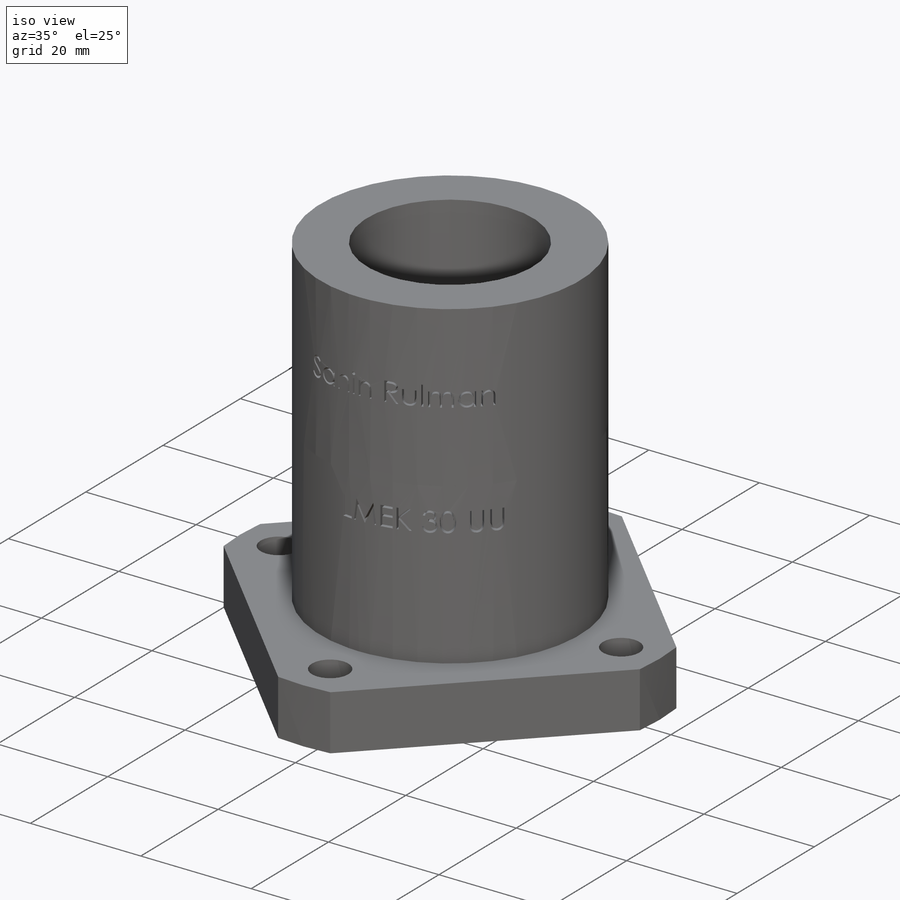
[diagram: iso view]
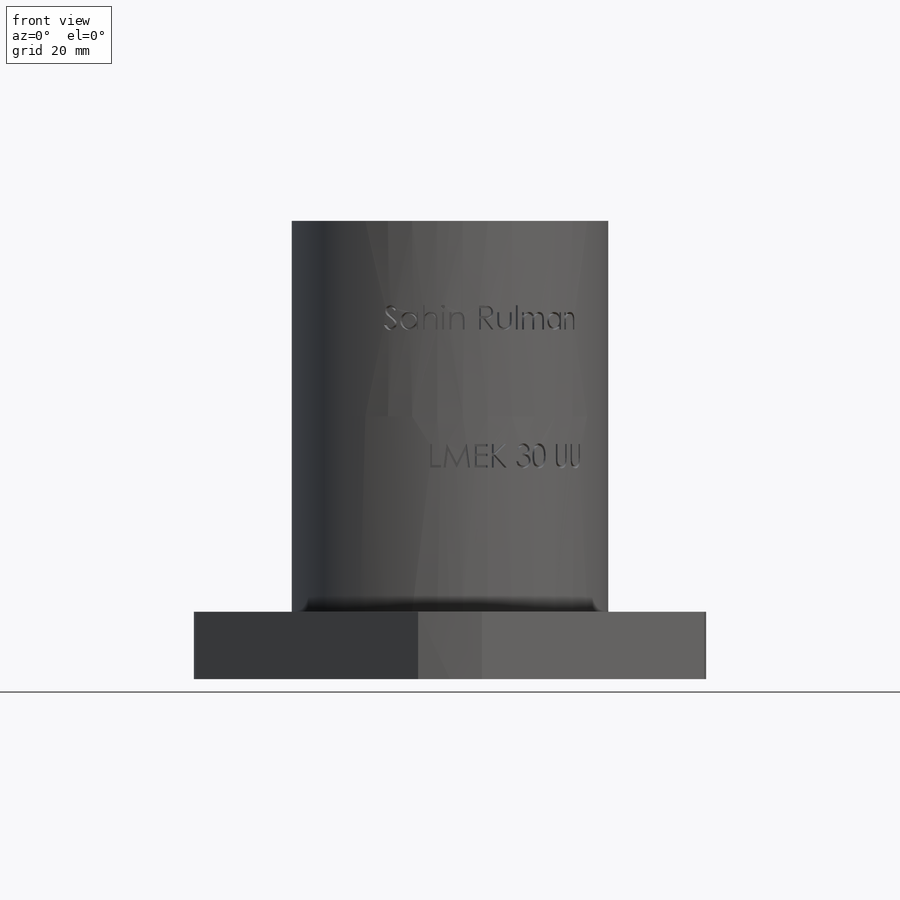
[diagram: front view]
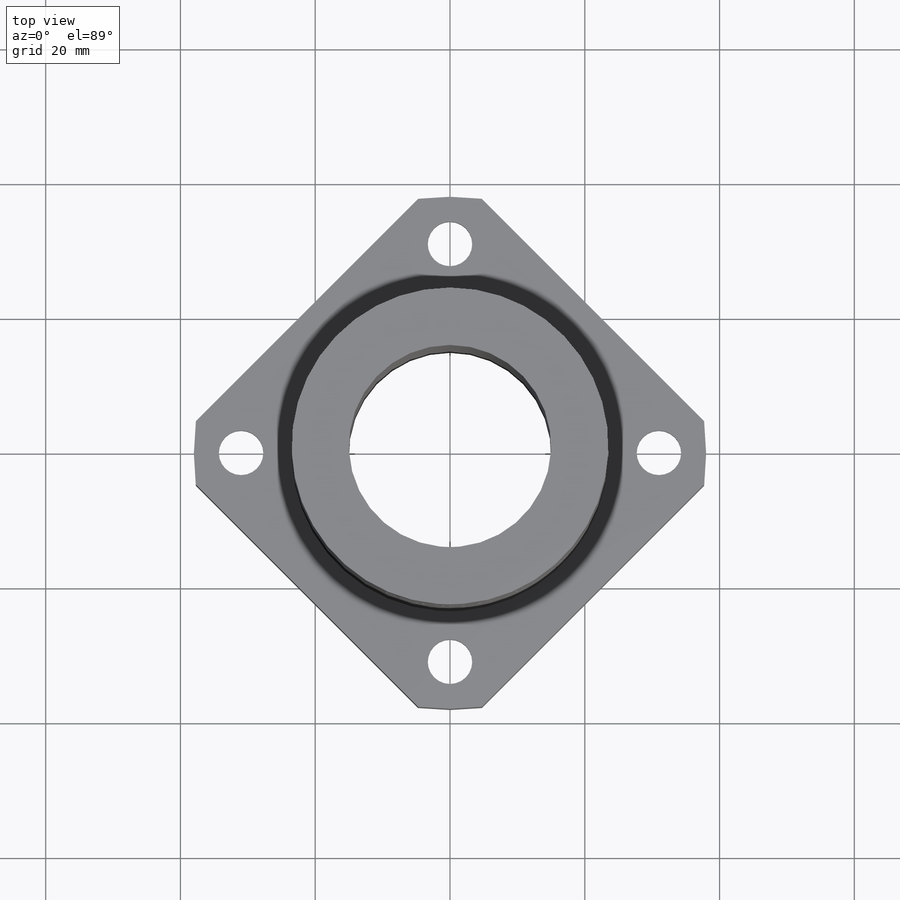
[diagram: top view]
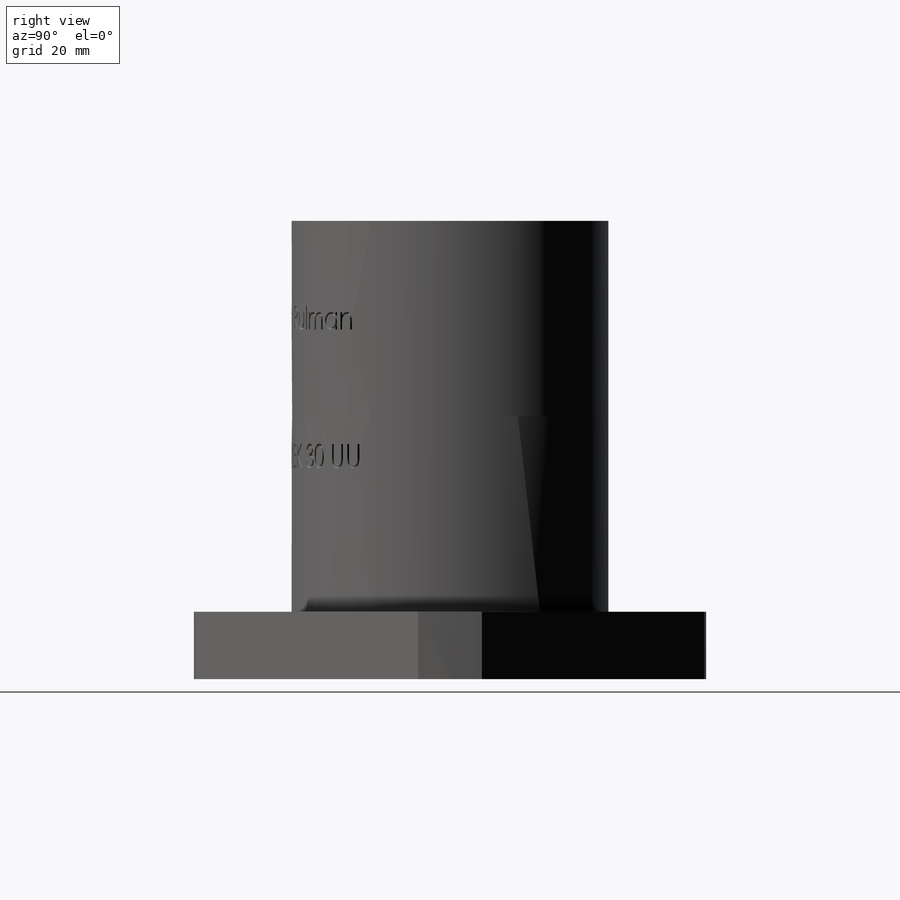
[diagram: right view]
SOLIDWORKS PART (.sldprt)
format: sldprt  version: not decoded by parser v0  size: 981,504 bytes
history: native  units: mm
features: sketch x5, extrude x2, cut_extrude x2, material x1, plane x1 (+11 scaffold rows collapsed)
feature tree (22):
  scaffold x11  (default folders/planes/origin — collapsed)
  material  "Material <not specified>"
  sketch  "Sketch1"  dims[D1=76.0mm D2=30.0mm D3=62.0mm D4=6.6mm D5=4.0]
  extrude  "Boss-Extrude1"  Depth=10mm
  sketch  "Sketch2"  dims[D1=11.0mm D2=4.0]
  cut_extrude  "Cut-Extrude1"  Depth=6.1mm
  sketch  "Sketch3"  dims[D1=47.0mm]
  extrude  "Boss-Extrude2"  Depth=58mm
  plane  "Plane1"  Offset=45.76547mm
  sketch  "Sketch4"  dims[D1=1.0mm]
  sketch  "Sketch5"  dims[D1=60.0mm]
  cut_extrude  "Cut-Extrude2"  Depth=10mm
decode coverage: 9 of 9 modeling features carry decoded parameters
note: suppression state not decoded; provenance and decode notes live in map.json
